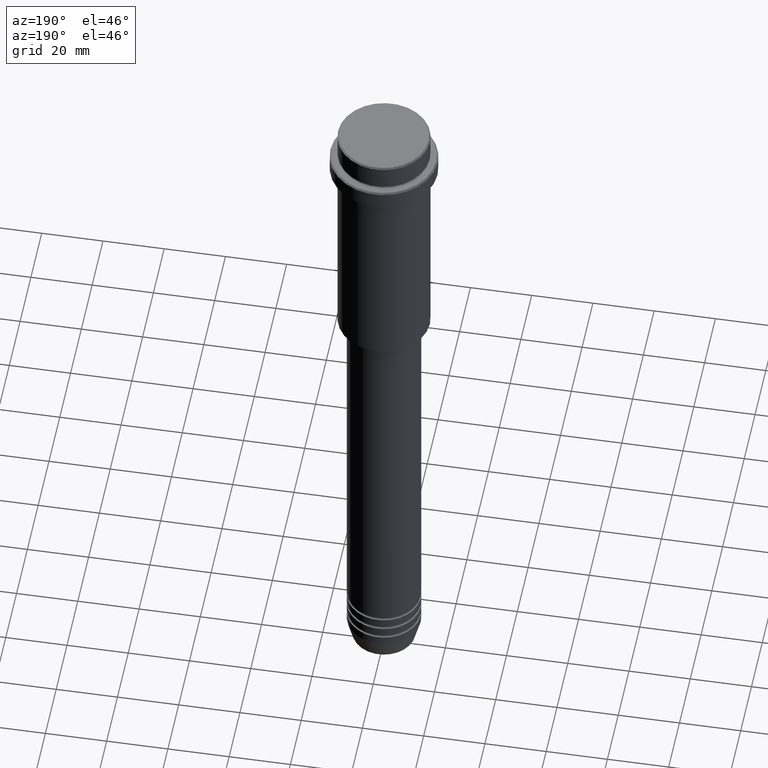
[diagram: clean part render]
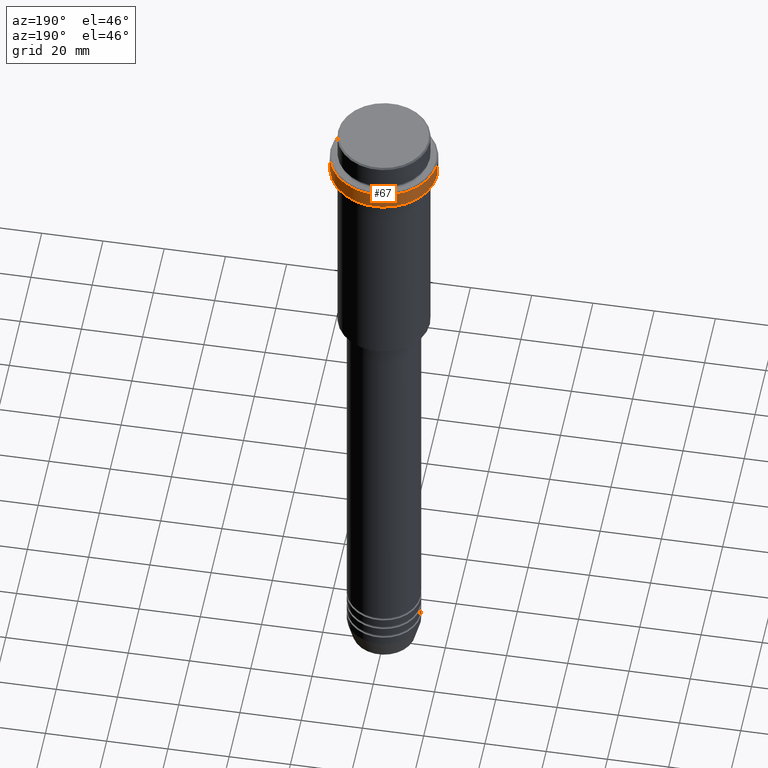
[diagram: same view with one face highlighted and labeled with its STEP entity id]
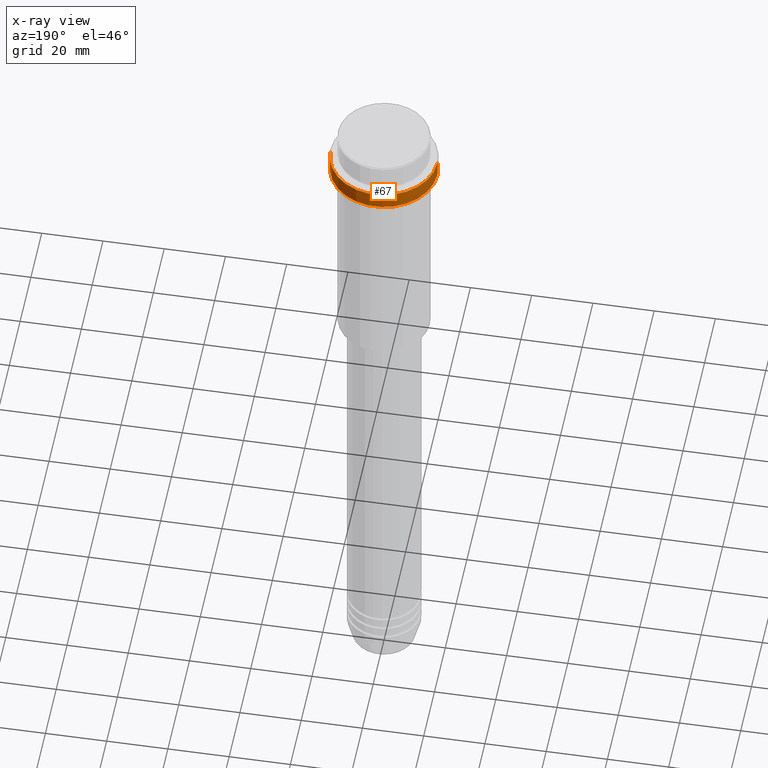
[diagram: x-ray of the same camera — body ghosted, the highlighted face saturated]
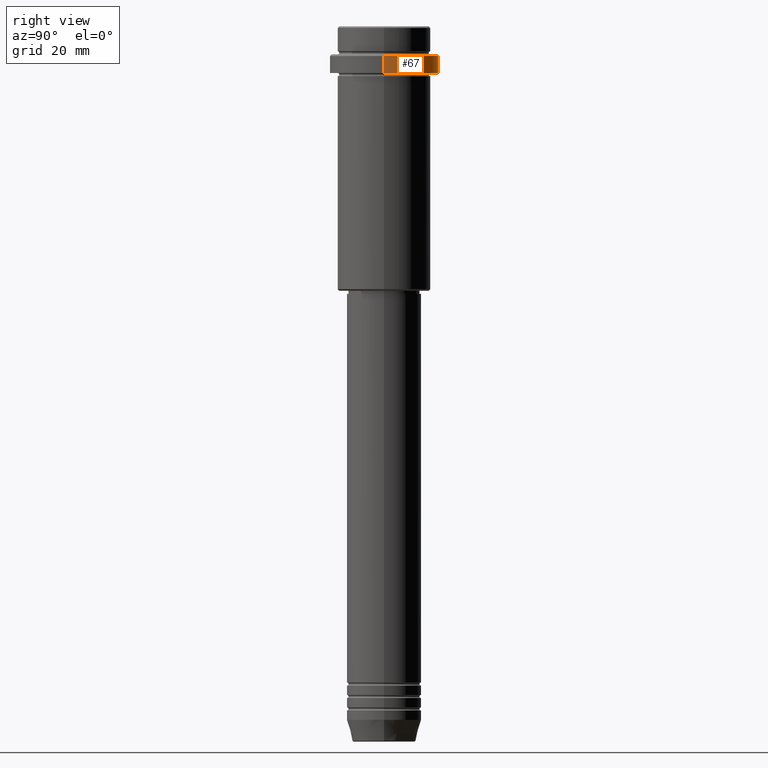
[diagram: same view with one face highlighted and labeled with its STEP entity id]
A machine part, auxiliary view. The second image highlights one B-rep face of the part: STEP entity #67.
The next image is the same camera in x-ray: the body ghosted, the highlighted face saturated — about 0% of this face is hidden behind the body in this view.
A second angle (right view) of the same face is appended — the face is thin or edge-on in the first view.
In plain terms, the highlighted cylindrical surface (partial cylindrical patch) has radius 17.5 mm, axis along (-0, -0, 1).
Its self-contained STEP definition (entity closure, byte-faithful):
#21 = DIRECTION ( 'NONE',  ( -0.000000000000000000, -0.000000000000000000, 1.000000000000000000 ) ) ;
#40 = CARTESIAN_POINT ( 'NONE',  ( 0.000000000000000000, 0.000000000000000000, -15.00000000000000000 ) ) ;
#67 = ADVANCED_FACE ( 'NONE', ( #351 ), #868, .T. ) ;
#86 = EDGE_CURVE ( 'NONE', #216, #425, #166, .T. ) ;
#126 = CARTESIAN_POINT ( 'NONE',  ( 0.000000000000000000, 0.000000000000000000, -9.499999999999971578 ) ) ;
#166 = CIRCLE ( 'NONE', #190, 17.50000000000000000 ) ;
#182 = CARTESIAN_POINT ( 'NONE',  ( -17.50000000000000000, 2.143131898507868248E-15, -9.499999999999971578 ) ) ;
#190 = AXIS2_PLACEMENT_3D ( 'NONE', #40, #918, #809 ) ;
#216 = VERTEX_POINT ( 'NONE', #1149 ) ;
#247 = AXIS2_PLACEMENT_3D ( 'NONE', #126, #566, #991 ) ;
#271 = ORIENTED_EDGE ( 'NONE', *, *, #1345, .T. ) ;
#272 = VECTOR ( 'NONE', #342, 1000.000000000000000 ) ;
#311 = ORIENTED_EDGE ( 'NONE', *, *, #86, .T. ) ;
#342 = DIRECTION ( 'NONE',  ( -0.000000000000000000, -0.000000000000000000, 1.000000000000000000 ) ) ;
#351 = FACE_OUTER_BOUND ( 'NONE', #1341, .T. ) ;
#425 = VERTEX_POINT ( 'NONE', #562 ) ;
#523 = CARTESIAN_POINT ( 'NONE',  ( 17.50000000000000000, 0.000000000000000000, -9.499999999999971578 ) ) ;
#562 = CARTESIAN_POINT ( 'NONE',  ( -17.50000000000000000, 2.143131898507868248E-15, -15.00000000000000000 ) ) ;
#566 = DIRECTION ( 'NONE',  ( 0.000000000000000000, 0.000000000000000000, -1.000000000000000000 ) ) ;
#569 = CARTESIAN_POINT ( 'NONE',  ( 0.000000000000000000, 0.000000000000000000, 0.000000000000000000 ) ) ;
#612 = DIRECTION ( 'NONE',  ( 1.000000000000000000, 0.000000000000000000, 0.000000000000000000 ) ) ;
#771 = VERTEX_POINT ( 'NONE', #182 ) ;
#809 = DIRECTION ( 'NONE',  ( 1.000000000000000000, 0.000000000000000000, 0.000000000000000000 ) ) ;
#820 = VECTOR ( 'NONE', #1153, 1000.000000000000000 ) ;
#836 = EDGE_CURVE ( 'NONE', #216, #1270, #1290, .T. ) ;
#847 = ORIENTED_EDGE ( 'NONE', *, *, #997, .T. ) ;
#868 = CYLINDRICAL_SURFACE ( 'NONE', #1348, 17.50000000000000000 ) ;
#918 = DIRECTION ( 'NONE',  ( -0.000000000000000000, -0.000000000000000000, 1.000000000000000000 ) ) ;
#935 = CARTESIAN_POINT ( 'NONE',  ( 17.50000000000000000, 0.000000000000000000, 0.000000000000000000 ) ) ;
#991 = DIRECTION ( 'NONE',  ( 1.000000000000000000, 0.000000000000000000, 0.000000000000000000 ) ) ;
#997 = EDGE_CURVE ( 'NONE', #771, #1270, #1349, .T. ) ;
#1125 = ORIENTED_EDGE ( 'NONE', *, *, #836, .F. ) ;
#1149 = CARTESIAN_POINT ( 'NONE',  ( 17.50000000000000000, 0.000000000000000000, -15.00000000000000000 ) ) ;
#1153 = DIRECTION ( 'NONE',  ( -0.000000000000000000, -0.000000000000000000, 1.000000000000000000 ) ) ;
#1270 = VERTEX_POINT ( 'NONE', #523 ) ;
#1290 = LINE ( 'NONE', #935, #820 ) ;
#1310 = CARTESIAN_POINT ( 'NONE',  ( -17.50000000000000000, 2.143131898507868248E-15, 0.000000000000000000 ) ) ;
#1315 = LINE ( 'NONE', #1310, #272 ) ;
#1341 = EDGE_LOOP ( 'NONE', ( #311, #271, #847, #1125 ) ) ;
#1345 = EDGE_CURVE ( 'NONE', #425, #771, #1315, .T. ) ;
#1348 = AXIS2_PLACEMENT_3D ( 'NONE', #569, #21, #612 ) ;
#1349 = CIRCLE ( 'NONE', #247, 17.50000000000000000 ) ;